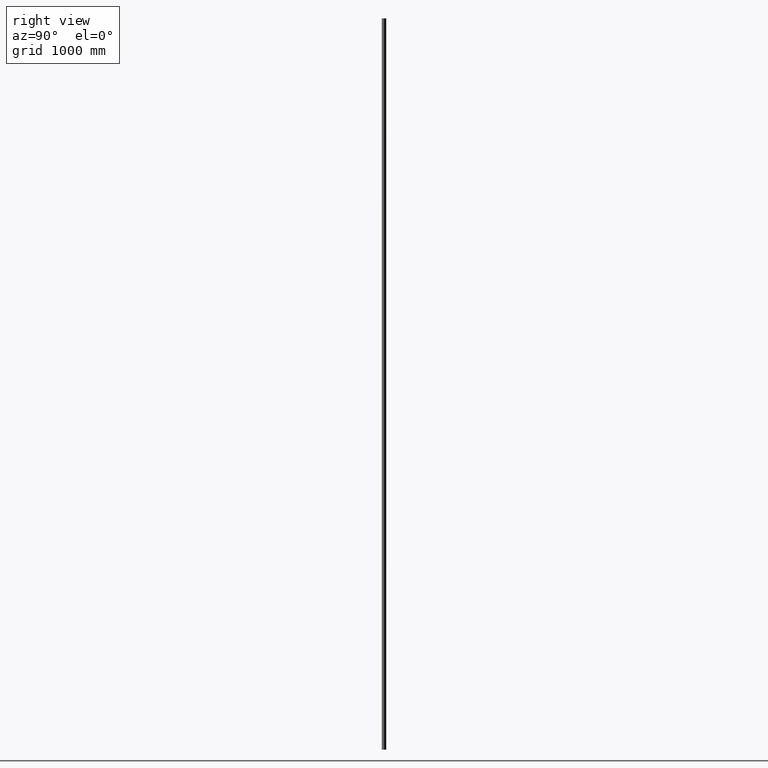
[diagram: clean part render]
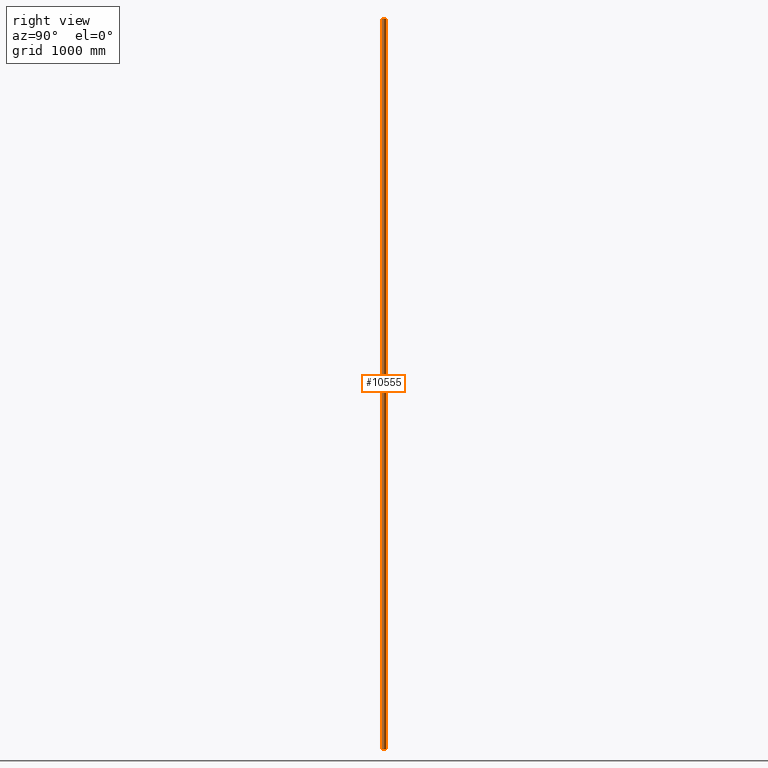
[diagram: same view with one face highlighted and labeled with its STEP entity id]
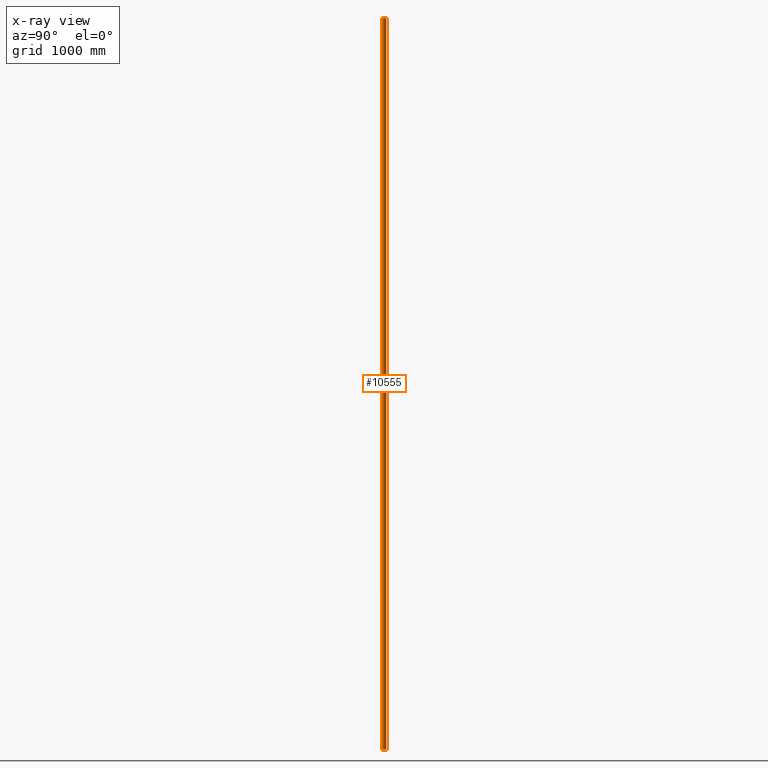
[diagram: x-ray of the same camera — body ghosted, the highlighted face saturated]
A machine part, right view. The second image highlights one B-rep face of the part: STEP entity #10555.
The next image is the same camera in x-ray: the body ghosted, the highlighted face saturated — about 0% of this face is hidden behind the body in this view.
In plain terms, the highlighted face is a freeform B-spline surface patch.
Its self-contained STEP definition (entity closure, byte-faithful):
#562 = EDGE_CURVE ( 'NONE', #9241, #10302, #10628, .T. ) ;
#1096 = CARTESIAN_POINT ( 'NONE',  ( -64.79467995269645542, -5.221791323539878071, 2999.999999999999545 ) ) ;
#1181 = CARTESIAN_POINT ( 'NONE',  ( -64.79467995269645542, -5.221791323539878071, 2999.999999999999545 ) ) ;
#1806 = CARTESIAN_POINT ( 'NONE',  ( 19.02185688626131466, -17.59381255298715629, -3000.000000000000000 ) ) ;
#2389 = EDGE_LOOP ( 'NONE', ( #8803, #5729, #16737, #2797 ) ) ;
#2797 = ORIENTED_EDGE ( 'NONE', *, *, #16131, .T. ) ;
#2897 = DIRECTION ( 'NONE',  ( -0.000000000000000000, -0.000000000000000000, -1.000000000000000000 ) ) ;
#2981 = CARTESIAN_POINT ( 'NONE',  ( -19.02185688626131110, -17.59381255298715629, -3000.000000000000000 ) ) ;
#3017 = EDGE_CURVE ( 'NONE', #14805, #12392, #16486, .T. ) ;
#3522 = VECTOR ( 'NONE', #8500, 1000.000000000000000 ) ;
#3636 = CARTESIAN_POINT ( 'NONE',  ( -52.03286431361191688, 19.99999999999999645, 2999.999999999999545 ) ) ;
#4979 = CARTESIAN_POINT ( 'NONE',  ( 64.79467995269648384, -5.221791323539912710, 3000.000000000000455 ) ) ;
#5147 = CARTESIAN_POINT ( 'NONE',  ( 64.79467995269648384, -5.221791323539912710, 3000.000000000000000 ) ) ;
#5519 = EDGE_CURVE ( 'NONE', #12392, #10302, #12859, .T. ) ;
#5591 = CARTESIAN_POINT ( 'NONE',  ( -19.02185688626131110, -17.59381255298715629, -3000.000000000000000 ) ) ;
#5729 = ORIENTED_EDGE ( 'NONE', *, *, #5519, .F. ) ;
#5788 = CARTESIAN_POINT ( 'NONE',  ( 2.449293598294706513E-15, 20.00000000000000000, -3000.000000000000000 ) ) ;
#6146 = CARTESIAN_POINT ( 'NONE',  ( -19.02185688626131110, -17.59381255298715629, 3000.000000000000000 ) ) ;
#6267 = CARTESIAN_POINT ( 'NONE',  ( 2.449293598294706513E-15, 20.00000000000000000, -3000.000000000000000 ) ) ;
#6309 = FACE_OUTER_BOUND ( 'NONE', #2389, .T. ) ;
#6327 = CARTESIAN_POINT ( 'NONE',  ( 52.03286431361195952, 20.00000000000000711, 3000.000000000000000 ) ) ;
#6377 = CARTESIAN_POINT ( 'NONE',  ( 52.03286431361195952, 20.00000000000000711, -3000.000000000000000 ) ) ;
#6647 =( BOUNDED_SURFACE ( )  B_SPLINE_SURFACE ( 3, 1, ( 
 ( #7346, #9070 ),
 ( #5147, #8960 ),
 ( #6327, #6377 ),
 ( #15465, #6267 ),
 ( #3636, #15523 ),
 ( #1096, #12909 ),
 ( #12792, #10215 ) ),
 .UNSPECIFIED., .F., .F., .F. ) 
 B_SPLINE_SURFACE_WITH_KNOTS ( ( 4, 3, 4 ),
 ( 2, 2 ),
 ( 0.000000000000000000, 0.5000000000000000000, 1.000000000000000000 ),
 ( 0.000000000000000000, 1.000000000000000000 ),
 .UNSPECIFIED. ) 
 GEOMETRIC_REPRESENTATION_ITEM ( )  RATIONAL_B_SPLINE_SURFACE ( (
 ( 1.000000000000000000, 1.000000000000000000),
 ( 0.4968430152421442481, 0.4968430152421442481),
 ( 0.4968430152421442481, 0.4968430152421442481),
 ( 1.000000000000000000, 1.000000000000000000),
 ( 0.4968430152421445811, 0.4968430152421445811),
 ( 0.4968430152421445811, 0.4968430152421445811),
 ( 1.000000000000000000, 1.000000000000000000) ) ) 
 REPRESENTATION_ITEM ( '' )  SURFACE ( )  );
#6799 = CARTESIAN_POINT ( 'NONE',  ( -19.02185688626131110, -17.59381255298715629, 3000.000000000000000 ) ) ;
#7029 = CARTESIAN_POINT ( 'NONE',  ( -64.79467995269645542, -5.221791323539878071, -2999.999999999999545 ) ) ;
#7297 = CARTESIAN_POINT ( 'NONE',  ( 19.02185688626131466, -17.59381255298715629, 3000.000000000000000 ) ) ;
#7346 = CARTESIAN_POINT ( 'NONE',  ( 19.02185688626130045, -17.59381255298715629, 3000.000000000000000 ) ) ;
#8305 = CARTESIAN_POINT ( 'NONE',  ( -52.03286431361191688, 19.99999999999999645, -2999.999999999999545 ) ) ;
#8500 = DIRECTION ( 'NONE',  ( -0.000000000000000000, -0.000000000000000000, -1.000000000000000000 ) ) ;
#8803 = ORIENTED_EDGE ( 'NONE', *, *, #562, .T. ) ;
#8960 = CARTESIAN_POINT ( 'NONE',  ( 64.79467995269648384, -5.221791323539912710, -3000.000000000000000 ) ) ;
#8961 = VECTOR ( 'NONE', #2897, 1000.000000000000000 ) ;
#9032 = CARTESIAN_POINT ( 'NONE',  ( 19.02185688626131466, -17.59381255298715629, 3000.000000000000000 ) ) ;
#9070 = CARTESIAN_POINT ( 'NONE',  ( 19.02185688626130045, -17.59381255298715629, -3000.000000000000000 ) ) ;
#9089 = CARTESIAN_POINT ( 'NONE',  ( -52.03286431361191688, 19.99999999999999645, 2999.999999999999545 ) ) ;
#9241 = VERTEX_POINT ( 'NONE', #1806 ) ;
#10215 = CARTESIAN_POINT ( 'NONE',  ( -19.02185688626134308, -17.59381255298714208, -3000.000000000000000 ) ) ;
#10302 = VERTEX_POINT ( 'NONE', #5591 ) ;
#10343 = CARTESIAN_POINT ( 'NONE',  ( -19.02185688626131110, -17.59381255298715629, 3000.000000000000000 ) ) ;
#10555 = ADVANCED_FACE ( 'NONE', ( #6309 ), #6647, .F. ) ;
#10628 =( BOUNDED_CURVE ( )  B_SPLINE_CURVE ( 3, ( #10881, #16119, #14873, #5788, #8305, #7029, #2981 ),
 .UNSPECIFIED., .F., .T. ) 
 B_SPLINE_CURVE_WITH_KNOTS ( ( 4, 3, 4 ),
 ( 5.207974060530523808, 7.853981633974482790, 10.49998920741844088 ),
 .UNSPECIFIED. ) 
 CURVE ( )  GEOMETRIC_REPRESENTATION_ITEM ( )  RATIONAL_B_SPLINE_CURVE ( ( 1.000000000000000000, 0.4968430152421442481, 0.4968430152421442481, 1.000000000000000000, 0.4968430152421445811, 0.4968430152421445811, 1.000000000000000000 ) ) 
 REPRESENTATION_ITEM ( '' )  );
#10699 = LINE ( 'NONE', #7297, #3522 ) ;
#10881 = CARTESIAN_POINT ( 'NONE',  ( 19.02185688626131466, -17.59381255298715629, -3000.000000000000000 ) ) ;
#12392 = VERTEX_POINT ( 'NONE', #6146 ) ;
#12792 = CARTESIAN_POINT ( 'NONE',  ( -19.02185688626134308, -17.59381255298714208, 3000.000000000000000 ) ) ;
#12859 = LINE ( 'NONE', #6799, #8961 ) ;
#12909 = CARTESIAN_POINT ( 'NONE',  ( -64.79467995269645542, -5.221791323539878071, -2999.999999999999545 ) ) ;
#14238 = CARTESIAN_POINT ( 'NONE',  ( 2.449293598294706513E-15, 20.00000000000000000, 3000.000000000000000 ) ) ;
#14805 = VERTEX_POINT ( 'NONE', #16523 ) ;
#14873 = CARTESIAN_POINT ( 'NONE',  ( 52.03286431361195952, 20.00000000000000355, -3000.000000000000455 ) ) ;
#15465 = CARTESIAN_POINT ( 'NONE',  ( 2.449293598294706513E-15, 20.00000000000000000, 3000.000000000000000 ) ) ;
#15523 = CARTESIAN_POINT ( 'NONE',  ( -52.03286431361191688, 19.99999999999999645, -2999.999999999999545 ) ) ;
#16119 = CARTESIAN_POINT ( 'NONE',  ( 64.79467995269648384, -5.221791323539912710, -3000.000000000000455 ) ) ;
#16131 = EDGE_CURVE ( 'NONE', #14805, #9241, #10699, .T. ) ;
#16486 =( BOUNDED_CURVE ( )  B_SPLINE_CURVE ( 3, ( #9032, #4979, #16747, #14238, #9089, #1181, #10343 ),
 .UNSPECIFIED., .F., .F. ) 
 B_SPLINE_CURVE_WITH_KNOTS ( ( 4, 3, 4 ),
 ( 5.207974060530523808, 7.853981633974482790, 10.49998920741844088 ),
 .UNSPECIFIED. ) 
 CURVE ( )  GEOMETRIC_REPRESENTATION_ITEM ( )  RATIONAL_B_SPLINE_CURVE ( ( 1.000000000000000000, 0.4968430152421442481, 0.4968430152421442481, 1.000000000000000000, 0.4968430152421445811, 0.4968430152421445811, 1.000000000000000000 ) ) 
 REPRESENTATION_ITEM ( '' )  );
#16523 = CARTESIAN_POINT ( 'NONE',  ( 19.02185688626131466, -17.59381255298715629, 3000.000000000000000 ) ) ;
#16737 = ORIENTED_EDGE ( 'NONE', *, *, #3017, .F. ) ;
#16747 = CARTESIAN_POINT ( 'NONE',  ( 52.03286431361195952, 20.00000000000000355, 3000.000000000000455 ) ) ;